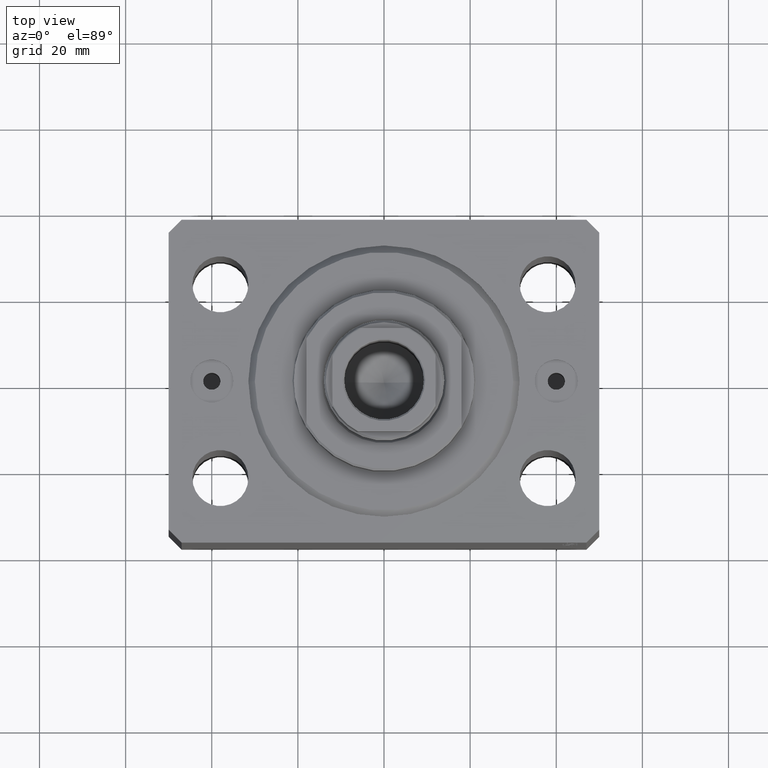
[diagram: clean part render]
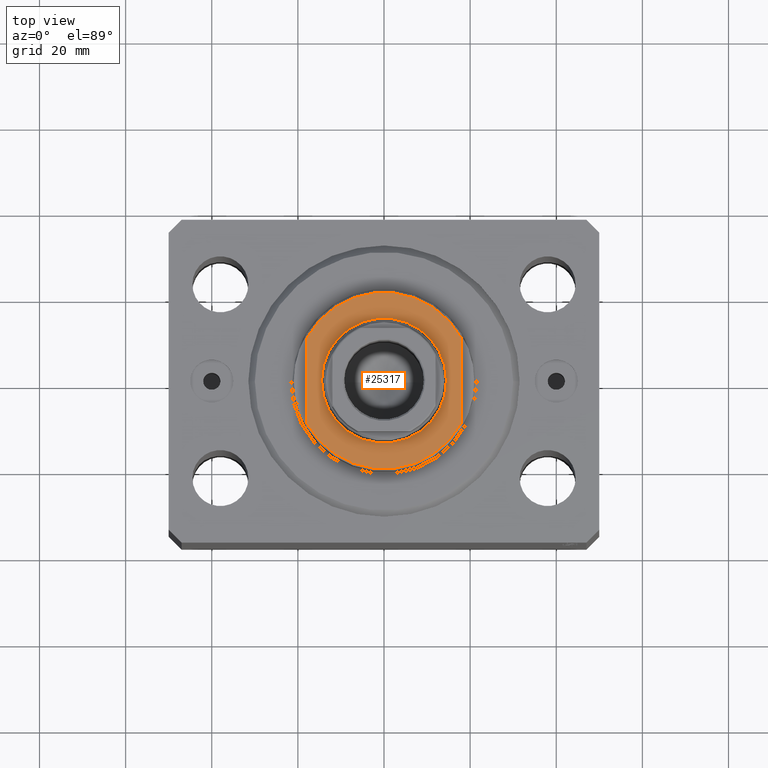
[diagram: same view with one face highlighted and labeled with its STEP entity id]
A machine part, top view. The second image highlights one B-rep face of the part: STEP entity #25317.
In plain terms, the highlighted planar face has unit normal (0, 0, 1).
Its self-contained STEP definition (entity closure, byte-faithful):
#159 = LINE ( 'NONE', #25100, #31410 ) ;
#262 = VECTOR ( 'NONE', #15733, 1000.000000000000000 ) ;
#469 = ORIENTED_EDGE ( 'NONE', *, *, #42080, .T. ) ;
#1272 = EDGE_CURVE ( 'NONE', #3729, #20527, #5374, .T. ) ;
#1837 = DIRECTION ( 'NONE',  ( -1.000000000000000000, 0.000000000000000000, 0.000000000000000000 ) ) ;
#3729 = VERTEX_POINT ( 'NONE', #34643 ) ;
#3744 = DIRECTION ( 'NONE',  ( -1.000000000000000000, 0.000000000000000000, 0.000000000000000000 ) ) ;
#4320 = CARTESIAN_POINT ( 'NONE',  ( 0.000000000000000000, 0.000000000000000000, -8.000000000000000000 ) ) ;
#4480 = DIRECTION ( 'NONE',  ( -1.000000000000000000, 0.000000000000000000, -0.000000000000000000 ) ) ;
#4867 = ORIENTED_EDGE ( 'NONE', *, *, #1272, .T. ) ;
#5374 = CIRCLE ( 'NONE', #10456, 20.50000000000001776 ) ;
#6345 = EDGE_CURVE ( 'NONE', #20527, #37504, #159, .T. ) ;
#8518 = CARTESIAN_POINT ( 'NONE',  ( 0.000000000000000000, 0.000000000000000000, -8.000000000000000000 ) ) ;
#9370 = CARTESIAN_POINT ( 'NONE',  ( -18.00000000000000000, -9.810708435174332109, -8.000000000000000000 ) ) ;
#10456 = AXIS2_PLACEMENT_3D ( 'NONE', #31975, #42299, #39371 ) ;
#10944 = VERTEX_POINT ( 'NONE', #15446 ) ;
#11669 = FACE_OUTER_BOUND ( 'NONE', #34553, .T. ) ;
#11891 = DIRECTION ( 'NONE',  ( 0.000000000000000000, 0.000000000000000000, -1.000000000000000000 ) ) ;
#12153 = VERTEX_POINT ( 'NONE', #32052 ) ;
#12758 = ORIENTED_EDGE ( 'NONE', *, *, #29198, .T. ) ;
#15446 = CARTESIAN_POINT ( 'NONE',  ( -14.49999999999999822, 0.000000000000000000, -8.000000000000000000 ) ) ;
#15452 = CIRCLE ( 'NONE', #44133, 14.49999999999999822 ) ;
#15733 = DIRECTION ( 'NONE',  ( -0.000000000000000000, -1.000000000000000000, -0.000000000000000000 ) ) ;
#20527 = VERTEX_POINT ( 'NONE', #40090 ) ;
#22076 = AXIS2_PLACEMENT_3D ( 'NONE', #36840, #35775, #1837 ) ;
#24553 = ORIENTED_EDGE ( 'NONE', *, *, #6345, .T. ) ;
#25100 = CARTESIAN_POINT ( 'NONE',  ( 18.00000000000000000, -41.24318125460256113, -8.000000000000000000 ) ) ;
#25317 = ADVANCED_FACE ( 'NONE', ( #35713, #11669 ), #42686, .T. ) ;
#26116 = DIRECTION ( 'NONE',  ( -0.000000000000000000, -0.000000000000000000, 1.000000000000000000 ) ) ;
#27533 = ORIENTED_EDGE ( 'NONE', *, *, #27645, .T. ) ;
#27645 = EDGE_CURVE ( 'NONE', #10944, #12153, #31619, .T. ) ;
#29198 = EDGE_CURVE ( 'NONE', #37504, #29510, #44345, .T. ) ;
#29510 = VERTEX_POINT ( 'NONE', #9370 ) ;
#30210 = AXIS2_PLACEMENT_3D ( 'NONE', #30730, #34326, #3744 ) ;
#30730 = CARTESIAN_POINT ( 'NONE',  ( 0.000000000000000000, 0.000000000000000000, -8.000000000000000000 ) ) ;
#30938 = ORIENTED_EDGE ( 'NONE', *, *, #38422, .F. ) ;
#31410 = VECTOR ( 'NONE', #34564, 1000.000000000000000 ) ;
#31548 = CARTESIAN_POINT ( 'NONE',  ( -18.00000000000000000, -41.24318125460256113, -8.000000000000000000 ) ) ;
#31619 = CIRCLE ( 'NONE', #30210, 14.49999999999999822 ) ;
#31975 = CARTESIAN_POINT ( 'NONE',  ( 0.000000000000000000, 0.000000000000000000, -8.000000000000000000 ) ) ;
#32052 = CARTESIAN_POINT ( 'NONE',  ( 14.49999999999999822, 1.775737858763662015E-15, -8.000000000000000000 ) ) ;
#33053 = LINE ( 'NONE', #31548, #262 ) ;
#34326 = DIRECTION ( 'NONE',  ( -0.000000000000000000, -0.000000000000000000, 1.000000000000000000 ) ) ;
#34553 = EDGE_LOOP ( 'NONE', ( #4867, #24553, #12758, #30938 ) ) ;
#34564 = DIRECTION ( 'NONE',  ( 0.000000000000000000, -1.000000000000000000, -0.000000000000000000 ) ) ;
#34643 = CARTESIAN_POINT ( 'NONE',  ( -18.00000000000000000, 9.810708435174332109, -8.000000000000000000 ) ) ;
#35713 = FACE_BOUND ( 'NONE', #40324, .T. ) ;
#35775 = DIRECTION ( 'NONE',  ( 0.000000000000000000, 0.000000000000000000, -1.000000000000000000 ) ) ;
#36840 = CARTESIAN_POINT ( 'NONE',  ( 0.000000000000000000, 0.000000000000000000, -8.000000000000000000 ) ) ;
#37504 = VERTEX_POINT ( 'NONE', #39562 ) ;
#38422 = EDGE_CURVE ( 'NONE', #3729, #29510, #33053, .T. ) ;
#39371 = DIRECTION ( 'NONE',  ( -1.000000000000000000, 0.000000000000000000, 0.000000000000000000 ) ) ;
#39562 = CARTESIAN_POINT ( 'NONE',  ( 18.00000000000000000, -9.810708435174332109, -8.000000000000000000 ) ) ;
#39608 = DIRECTION ( 'NONE',  ( -1.000000000000000000, 0.000000000000000000, 0.000000000000000000 ) ) ;
#40090 = CARTESIAN_POINT ( 'NONE',  ( 18.00000000000000000, 9.810708435174332109, -8.000000000000000000 ) ) ;
#40324 = EDGE_LOOP ( 'NONE', ( #27533, #469 ) ) ;
#40417 = AXIS2_PLACEMENT_3D ( 'NONE', #8518, #11891, #4480 ) ;
#42080 = EDGE_CURVE ( 'NONE', #12153, #10944, #15452, .T. ) ;
#42299 = DIRECTION ( 'NONE',  ( 0.000000000000000000, 0.000000000000000000, -1.000000000000000000 ) ) ;
#42686 = PLANE ( 'NONE',  #40417 ) ;
#44133 = AXIS2_PLACEMENT_3D ( 'NONE', #4320, #26116, #39608 ) ;
#44345 = CIRCLE ( 'NONE', #22076, 20.50000000000001776 ) ;